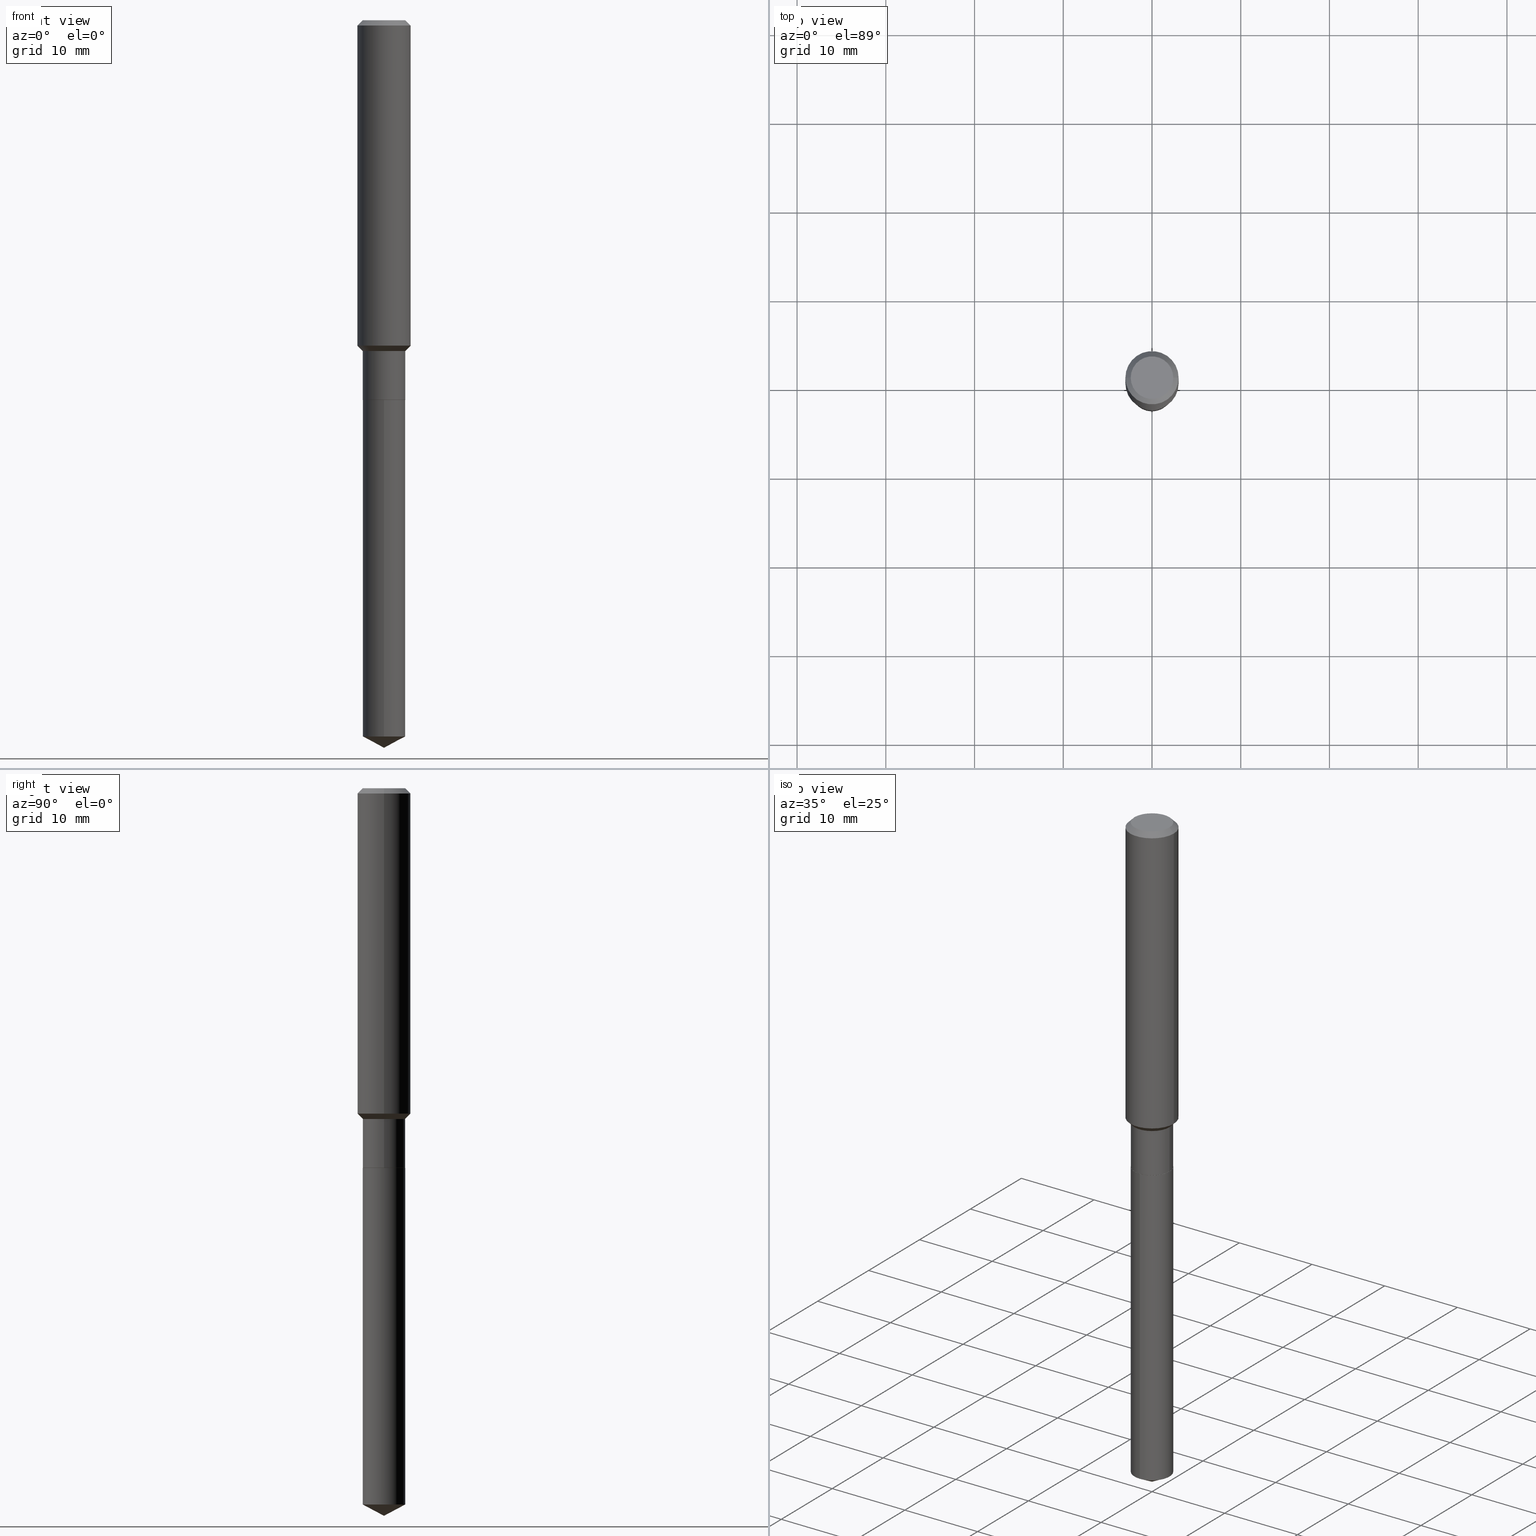
[diagram: canonical four-view strip — front | top / right | iso, engineering-drawing reading convention]
A machine part, canonical four-view strip (front | top / right | iso — engineering-drawing reading convention). The complete STEP part file that produces these views, byte-faithful:
ISO-10303-21;
HEADER;
FILE_DESCRIPTION (( 'STEP AP203' ),
    '1' );
FILE_NAME ('65178.STEP',
    '2024-04-24T21:00:00',
    ( '' ),
    ( '' ),
    'SwSTEP 2.0',
    'SolidWorks 2023',
    '' );
FILE_SCHEMA (( 'CONFIG_CONTROL_DESIGN' ));
ENDSEC;

DATA;
#1 = ORIENTED_EDGE ( 'NONE', *, *, #38, .F. ) ;
#2 = ORGANIZATION ( 'UNSPECIFIED', 'UNSPECIFIED', '' ) ;
#3 = MECHANICAL_CONTEXT ( 'NONE', #61, 'mechanical' ) ;
#4 = FACE_OUTER_BOUND ( 'NONE', #197, .T. ) ;
#5 = EDGE_CURVE ( 'NONE', #441, #319, #317, .T. ) ;
#6 = FACE_OUTER_BOUND ( 'NONE', #372, .T. ) ;
#7 = DIRECTION ( 'NONE',  ( 1.000000000000000000, -6.982962677686266711E-15, 4.876176775795936353E-29 ) ) ;
#8 = CC_DESIGN_PERSON_AND_ORGANIZATION_ASSIGNMENT ( #288, #208, ( #414 ) ) ;
#9 = ORIENTED_EDGE ( 'NONE', *, *, #201, .F. ) ;
#10 = ORIENTED_EDGE ( 'NONE', *, *, #124, .F. ) ;
#11 = AXIS2_PLACEMENT_3D ( 'NONE', #34, #445, #262 ) ;
#12 = APPROVAL_DATE_TIME ( #345, #174 ) ;
#13 = ADVANCED_FACE ( 'NONE', ( #464 ), #140, .T. ) ;
#14 = ORIENTED_EDGE ( 'NONE', *, *, #488, .T. ) ;
#15 = PERSON_AND_ORGANIZATION_ROLE ( 'creator' ) ;
#16 = ORIENTED_EDGE ( 'NONE', *, *, #255, .F. ) ;
#17 = UNCERTAINTY_MEASURE_WITH_UNIT (LENGTH_MEASURE( 1.000000000000000082E-05 ), #82, 'distance_accuracy_value', 'NONE');
#18 = VECTOR ( 'NONE', #355, 39.37007874015748143 ) ;
#19 = CIRCLE ( 'NONE', #296, 0.09449999999999998679 ) ;
#20 = FACE_OUTER_BOUND ( 'NONE', #157, .T. ) ;
#21 = FACE_OUTER_BOUND ( 'NONE', #471, .T. ) ;
#22 = SHAPE_DEFINITION_REPRESENTATION ( #120, #108 ) ;
#23 = CARTESIAN_POINT ( 'NONE',  ( -0.09447999999999998066, 7.009847083995354710E-16, -1.928573779297727792E-17 ) ) ;
#24 = ADVANCED_FACE ( 'NONE', ( #4 ), #237, .T. ) ;
#25 = CARTESIAN_POINT ( 'NONE',  ( 4.119392204018863440E-29, -5.881400315281279815E-15, -1.684500000000000330 ) ) ;
#26 = CARTESIAN_POINT ( 'NONE',  ( 0.1181000000000000799, -8.246878922347486570E-16, 5.758764772215004644E-30 ) ) ;
#27 = CIRCLE ( 'NONE', #246, 0.09449999999999998679 ) ;
#28 = CARTESIAN_POINT ( 'NONE',  ( 7.771783973672636712E-29, -1.109618111312725859E-14, -3.178053458707990497 ) ) ;
#29 = AXIS2_PLACEMENT_3D ( 'NONE', #289, #245, #394 ) ;
#30 = ADVANCED_FACE ( 'NONE', ( #21 ), #243, .T. ) ;
#31 = DIRECTION ( 'NONE',  ( -2.445468806185136597E-29, 3.491481338843145583E-15, 1.000000000000000000 ) ) ;
#32 = DIRECTION ( 'NONE',  ( -2.445437578913088603E-29, 3.491526058074064413E-15, 1.000000000000000000 ) ) ;
#33 = DIRECTION ( 'NONE',  ( -2.445468806185136597E-29, 3.491481338843145583E-15, 1.000000000000000000 ) ) ;
#34 = CARTESIAN_POINT ( 'NONE',  ( 4.120614938421955681E-29, -5.883146055950701318E-15, -1.685000000000000275 ) ) ;
#35 = LOCAL_TIME ( 17, 0, 0.000000000000000000, #461 ) ;
#36 = EDGE_LOOP ( 'NONE', ( #9, #342, #344, #387 ) ) ;
#37 = DIRECTION ( 'NONE',  ( 1.000000000000000000, -6.982962677686261977E-15, 0.000000000000000000 ) ) ;
#38 = EDGE_CURVE ( 'NONE', #441, #162, #421, .T. ) ;
#39 = FACE_OUTER_BOUND ( 'NONE', #51, .T. ) ;
#40 = CARTESIAN_POINT ( 'NONE',  ( -0.09399999999999998634, -5.215235884336206550E-15, -1.685000000000000275 ) ) ;
#41 = VECTOR ( 'NONE', #265, 39.37007874015748143 ) ;
#42 = DIRECTION ( 'NONE',  ( -2.445468806185136597E-29, 3.491481338843145583E-15, 1.000000000000000000 ) ) ;
#43 = EDGE_CURVE ( 'NONE', #314, #123, #134, .T. ) ;
#44 = ORIENTED_EDGE ( 'NONE', *, *, #410, .T. ) ;
#45 = VERTEX_POINT ( 'NONE', #99 ) ;
#46 = APPLICATION_PROTOCOL_DEFINITION ( 'international standard', 'config_control_design', 1994, #395 ) ;
#47 = DIRECTION ( 'NONE',  ( -1.000000000000000000, 6.982962677686265922E-15, -4.876176775795935793E-29 ) ) ;
#48 = ORIENTED_EDGE ( 'NONE', *, *, #293, .F. ) ;
#49 = DATE_AND_TIME ( #275, #369 ) ;
#50 = PERSON ( 'UNSPECIFIED', 'UNSPECIFIED', 'UNSPECIFIED', ('UNSPECIFIED'), ('UNSPECIFIED'), ('UNSPECIFIED') ) ;
#51 = EDGE_LOOP ( 'NONE', ( #222, #422, #233, #114 ) ) ;
#52 = CC_DESIGN_APPROVAL ( #203, ( #414 ) ) ;
#53 = PERSON_AND_ORGANIZATION_ROLE ( 'design_owner' ) ;
#54 = DIRECTION ( 'NONE',  ( 1.000000000000000000, -6.982962677686270655E-15, 0.000000000000000000 ) ) ;
#55 = ORIENTED_EDGE ( 'NONE', *, *, #385, .T. ) ;
#56 = DATE_AND_TIME ( #352, #261 ) ;
#57 = CONICAL_SURFACE ( 'NONE', #469, 0.09399999999999998634, 0.7853981633975507526 ) ;
#58 = CIRCLE ( 'NONE', #490, 0.09449999999999998679 ) ;
#59 = CALENDAR_DATE ( 2024, 24, 4 ) ;
#60 = DIRECTION ( 'NONE',  ( -2.445468806185136597E-29, 3.491481338843145583E-15, 1.000000000000000000 ) ) ;
#61 = APPLICATION_CONTEXT ( 'configuration controlled 3d designs of mechanical parts and assemblies' ) ;
#62 = DIRECTION ( 'NONE',  ( 1.000000000000000000, -6.982962677686269077E-15, 0.000000000000000000 ) ) ;
#63 = EDGE_CURVE ( 'NONE', #81, #406, #270, .T. ) ;
#64 = DIRECTION ( 'NONE',  ( 1.000000000000000000, -6.982962677686266711E-15, 0.000000000000000000 ) ) ;
#65 = VECTOR ( 'NONE', #257, 39.37007874015748143 ) ;
#66 = CARTESIAN_POINT ( 'NONE',  ( -0.1181000000000001632, -4.202548082356822902E-15, -1.443999999999999950 ) ) ;
#67 = DIRECTION ( 'NONE',  ( 1.000000000000000000, -6.982962677686267499E-15, 4.875432709231658792E-29 ) ) ;
#68 = CARTESIAN_POINT ( 'NONE',  ( 4.120614938421955681E-29, -5.883146055950701318E-15, -1.685000000000000275 ) ) ;
#69 = LINE ( 'NONE', #259, #160 ) ;
#70 = CARTESIAN_POINT ( 'NONE',  ( 4.120614938421955681E-29, -5.883146055950701318E-15, -1.685000000000000275 ) ) ;
#71 = APPROVAL ( #195, 'UNSPECIFIED' ) ;
#72 = AXIS2_PLACEMENT_3D ( 'NONE', #429, #382, #7 ) ;
#73 = CARTESIAN_POINT ( 'NONE',  ( -0.09449999999999998679, -4.831286278790446219E-15, -1.684500000000000330 ) ) ;
#74 = APPROVAL_PERSON_ORGANIZATION ( #318, #174, #378 ) ;
#75 = LINE ( 'NONE', #448, #65 ) ;
#76 = CARTESIAN_POINT ( 'NONE',  ( 0.09399999999999998634, -6.539544547653209537E-15, -1.685000000000000275 ) ) ;
#77 =( NAMED_UNIT ( * ) SI_UNIT ( $, .STERADIAN. ) SOLID_ANGLE_UNIT ( ) );
#78 = VERTEX_POINT ( 'NONE', #73 ) ;
#79 = CARTESIAN_POINT ( 'NONE',  ( 2.358133508849003952E-46, -3.366789680499277518E-32, -9.642868896486260050E-18 ) ) ;
#80 = ORIENTED_EDGE ( 'NONE', *, *, #365, .T. ) ;
#81 = VERTEX_POINT ( 'NONE', #485 ) ;
#82 =( CONVERSION_BASED_UNIT ( 'INCH', #151 ) LENGTH_UNIT ( ) NAMED_UNIT ( #361 ) );
#83 = PERSON_AND_ORGANIZATION ( #50, #2 ) ;
#84 = CARTESIAN_POINT ( 'NONE',  ( 7.771783973672636712E-29, -1.109618111312725859E-14, -3.178053458707990497 ) ) ;
#85 = ADVANCED_FACE ( 'NONE', ( #217 ), #370, .T. ) ;
#86 = AXIS2_PLACEMENT_3D ( 'NONE', #153, #453, #286 ) ;
#87 = AXIS2_PLACEMENT_3D ( 'NONE', #400, #60, #252 ) ;
#88 = DIRECTION ( 'NONE',  ( 1.000000000000000000, -6.982962677686267499E-15, 4.875432709231658792E-29 ) ) ;
#89 = PLANE ( 'NONE',  #107 ) ;
#90 = EDGE_LOOP ( 'NONE', ( #322, #368, #16, #231 ) ) ;
#91 = EDGE_CURVE ( 'NONE', #452, #264, #291, .T. ) ;
#92 = PERSON_AND_ORGANIZATION_ROLE ( 'design_supplier' ) ;
#93 = DIRECTION ( 'NONE',  ( -6.982962677686266711E-15, -1.000000000000000000, 3.541896320645564813E-15 ) ) ;
#94 = DATE_AND_TIME ( #59, #200 ) ;
#95 = CC_DESIGN_APPROVAL ( #71, ( #334 ) ) ;
#96 = DIRECTION ( 'NONE',  ( 6.982962677686265922E-15, 1.000000000000000000, -3.491526058074064807E-15 ) ) ;
#97 = CARTESIAN_POINT ( 'NONE',  ( 0.09449999999999995903, -5.783987985927553605E-15, -1.467600000000000238 ) ) ;
#98 = ADVANCED_FACE ( 'NONE', ( #439 ), #248, .T. ) ;
#99 = CARTESIAN_POINT ( 'NONE',  ( -0.1180999999999999966, -1.722932950323809293E-15, -0.02362000000000014088 ) ) ;
#100 = DIRECTION ( 'NONE',  ( -2.445468806185136597E-29, 3.491481338843145583E-15, 1.000000000000000000 ) ) ;
#101 = ORIENTED_EDGE ( 'NONE', *, *, #353, .T. ) ;
#102 = CARTESIAN_POINT ( 'NONE',  ( 0.000000000000000000, 0.000000000000000000, 0.000000000000000000 ) ) ;
#103 = CARTESIAN_POINT ( 'NONE',  ( 5.776197320209327532E-31, -8.246878922347559293E-17, -0.02362000000000014088 ) ) ;
#104 = EDGE_CURVE ( 'NONE', #314, #234, #204, .T. ) ;
#105 = CARTESIAN_POINT ( 'NONE',  ( -0.09449999999999995903, -4.831286278790446219E-15, -1.467600000000000238 ) ) ;
#106 = CARTESIAN_POINT ( 'NONE',  ( 0.09449999999999995903, -5.783987985927553605E-15, -1.467600000000000238 ) ) ;
#107 = AXIS2_PLACEMENT_3D ( 'NONE', #130, #323, #96 ) ;
#108 = ADVANCED_BREP_SHAPE_REPRESENTATION ( '65178', ( #282, #278, #432 ), #149 ) ;
#109 = CC_DESIGN_SECURITY_CLASSIFICATION ( #414, ( #290 ) ) ;
#110 = VERTEX_POINT ( 'NONE', #254 ) ;
#111 = CARTESIAN_POINT ( 'NONE',  ( -0.09449999999999997291, 6.714628852932944832E-16, -4.648393660290884930E-30 ) ) ;
#112 = ORIENTED_EDGE ( 'NONE', *, *, #161, .T. ) ;
#113 = DIRECTION ( 'NONE',  ( 1.000000000000000000, -6.982962677686265922E-15, 4.876176775795935793E-29 ) ) ;
#114 = ORIENTED_EDGE ( 'NONE', *, *, #184, .T. ) ;
#115 = DIRECTION ( 'NONE',  ( 1.000000000000000000, -6.982962677686266711E-15, 4.876176775795936353E-29 ) ) ;
#116 = CARTESIAN_POINT ( 'NONE',  ( 5.776197320209327532E-31, -8.246878922347559293E-17, -0.02362000000000014088 ) ) ;
#117 = VECTOR ( 'NONE', #148, 39.37007874015748143 ) ;
#118 = ORIENTED_EDGE ( 'NONE', *, *, #143, .F. ) ;
#119 = PERSON_AND_ORGANIZATION ( #50, #2 ) ;
#120 = PRODUCT_DEFINITION_SHAPE ( 'NONE', 'NONE',  #334 ) ;
#121 = CARTESIAN_POINT ( 'NONE',  ( -6.598899730413107968E-16, -0.09450000000000588485, -1.684999999999999831 ) ) ;
#122 = EDGE_LOOP ( 'NONE', ( #152, #101, #279 ) ) ;
#123 = VERTEX_POINT ( 'NONE', #66 ) ;
#124 = EDGE_CURVE ( 'NONE', #406, #81, #27, .T. ) ;
#125 = DATE_TIME_ROLE ( 'creation_date' ) ;
#126 = ORIENTED_EDGE ( 'NONE', *, *, #433, .F. ) ;
#127 = ORIENTED_EDGE ( 'NONE', *, *, #416, .F. ) ;
#128 = AXIS2_PLACEMENT_3D ( 'NONE', #417, #297, #188 ) ;
#129 = VERTEX_POINT ( 'NONE', #199 ) ;
#130 = CARTESIAN_POINT ( 'NONE',  ( 4.120614938421955681E-29, -5.883146055950701318E-15, -1.685000000000000275 ) ) ;
#131 = ADVANCED_FACE ( 'NONE', ( #348 ), #320, .T. ) ;
#132 = APPROVAL_DATE_TIME ( #56, #203 ) ;
#133 = CC_DESIGN_APPROVAL ( #174, ( #290 ) ) ;
#134 = LINE ( 'NONE', #326, #474 ) ;
#135 = EDGE_LOOP ( 'NONE', ( #80, #112 ) ) ;
#136 = CARTESIAN_POINT ( 'NONE',  ( 0.1180999999999999966, -9.071566814582237199E-16, -0.02362000000000014088 ) ) ;
#137 = CARTESIAN_POINT ( 'NONE',  ( 3.588970019957307278E-29, -5.124098012886201590E-15, -1.467600000000000238 ) ) ;
#138 = DIRECTION ( 'NONE',  ( -2.445468806185136597E-29, 3.491481338843145583E-15, 1.000000000000000000 ) ) ;
#139 = ORIENTED_EDGE ( 'NONE', *, *, #374, .F. ) ;
#140 = CONICAL_SURFACE ( 'NONE', #302, 0.09449999999999995903, 0.7853981633974472798 ) ;
#141 = AXIS2_PLACEMENT_3D ( 'NONE', #480, #138, #446 ) ;
#142 = FACE_OUTER_BOUND ( 'NONE', #36, .T. ) ;
#143 = EDGE_CURVE ( 'NONE', #308, #110, #58, .T. ) ;
#144 = CARTESIAN_POINT ( 'NONE',  ( 0.09447999999999998066, -7.704367267948738690E-16, -1.928573779296752193E-17 ) ) ;
#145 = DIRECTION ( 'NONE',  ( -2.445468806185136597E-29, 3.491481338843145583E-15, 1.000000000000000000 ) ) ;
#146 = FACE_OUTER_BOUND ( 'NONE', #90, .T. ) ;
#147 = ADVANCED_FACE ( 'NONE', ( #155 ), #266, .F. ) ;
#148 = DIRECTION ( 'NONE',  ( -2.445468806185136877E-29, 3.491481338843145188E-15, 1.000000000000000000 ) ) ;
#149 =( GEOMETRIC_REPRESENTATION_CONTEXT ( 3 ) GLOBAL_UNCERTAINTY_ASSIGNED_CONTEXT ( ( #17 ) ) GLOBAL_UNIT_ASSIGNED_CONTEXT ( ( #82, #305, #77 ) ) REPRESENTATION_CONTEXT ( 'NONE', 'WORKASPACE' ) );
#150 = ORIENTED_EDGE ( 'NONE', *, *, #402, .T. ) ;
#151 = LENGTH_MEASURE_WITH_UNIT ( LENGTH_MEASURE( 0.02539999999999999897 ), #430 );
#152 = ORIENTED_EDGE ( 'NONE', *, *, #488, .F. ) ;
#153 = CARTESIAN_POINT ( 'NONE',  ( -8.838241128198983547E-28, 1.261900376083111697E-13, 36.14177874015747705 ) ) ;
#154 = DIRECTION ( 'NONE',  ( 1.000000000000000000, -6.982962677686266711E-15, 0.000000000000000000 ) ) ;
#155 = FACE_OUTER_BOUND ( 'NONE', #135, .T. ) ;
#156 = ORIENTED_EDGE ( 'NONE', *, *, #178, .F. ) ;
#157 = EDGE_LOOP ( 'NONE', ( #215, #44, #230, #127 ) ) ;
#158 = DIRECTION ( 'NONE',  ( -2.438088387897960049E-29, 3.491481338843145188E-15, 1.000000000000000000 ) ) ;
#159 = AXIS2_PLACEMENT_3D ( 'NONE', #137, #401, #62 ) ;
#160 = VECTOR ( 'NONE', #483, 39.37007874015748143 ) ;
#161 = EDGE_CURVE ( 'NONE', #424, #194, #443, .T. ) ;
#162 = VERTEX_POINT ( 'NONE', #458 ) ;
#163 = CARTESIAN_POINT ( 'NONE',  ( 7.894712294706608394E-29, -1.127154286947230610E-14, -3.228299999999999947 ) ) ;
#164 = DIRECTION ( 'NONE',  ( -6.982962677686265922E-15, -1.000000000000000000, 2.890844437739961472E-15 ) ) ;
#165 = CARTESIAN_POINT ( 'NONE',  ( 0.000000000000000000, 0.000000000000000000, 0.000000000000000000 ) ) ;
#166 = ORIENTED_EDGE ( 'NONE', *, *, #293, .T. ) ;
#167 = ORIENTED_EDGE ( 'NONE', *, *, #444, .T. ) ;
#168 = COORDINATED_UNIVERSAL_TIME_OFFSET ( 5, 0, .BEHIND. ) ;
#169 = DIRECTION ( 'NONE',  ( 0.7071067811866199593, -2.468850131083015945E-15, 0.7071067811864750752 ) ) ;
#170 = APPROVAL_STATUS ( 'not_yet_approved' ) ;
#171 = EDGE_CURVE ( 'NONE', #452, #123, #313, .T. ) ;
#172 = AXIS2_PLACEMENT_3D ( 'NONE', #403, #145, #408 ) ;
#173 = AXIS2_PLACEMENT_3D ( 'NONE', #364, #336, #67 ) ;
#174 = APPROVAL ( #465, 'UNSPECIFIED' ) ;
#175 = CARTESIAN_POINT ( 'NONE',  ( -8.838241128198983547E-28, 1.261900376083111697E-13, 36.14177874015747705 ) ) ;
#176 = DIRECTION ( 'NONE',  ( -2.445468806185136597E-29, 3.491481338843145583E-15, 1.000000000000000000 ) ) ;
#177 = CARTESIAN_POINT ( 'NONE',  ( 4.120614938421955681E-29, -5.883146055950701318E-15, -1.685000000000000275 ) ) ;
#178 = EDGE_CURVE ( 'NONE', #308, #406, #242, .T. ) ;
#179 = AXIS2_PLACEMENT_3D ( 'NONE', #175, #206, #93 ) ;
#180 = VECTOR ( 'NONE', #411, 39.37007874015748143 ) ;
#181 = FACE_OUTER_BOUND ( 'NONE', #380, .T. ) ;
#182 = DIRECTION ( 'NONE',  ( 1.000000000000000000, -6.982962677686266711E-15, 0.000000000000000000 ) ) ;
#183 = DIRECTION ( 'NONE',  ( -2.445468806185136877E-29, 3.491481338843145188E-15, 1.000000000000000000 ) ) ;
#184 = EDGE_CURVE ( 'NONE', #45, #264, #284, .T. ) ;
#185 = AXIS2_PLACEMENT_3D ( 'NONE', #102, #276, #115 ) ;
#186 = CARTESIAN_POINT ( 'NONE',  ( 4.120614938421955681E-29, -5.883146055950701318E-15, -1.685000000000000275 ) ) ;
#187 = CARTESIAN_POINT ( 'NONE',  ( 0.1181000000000001632, -5.866386945524251729E-15, -1.443999999999999950 ) ) ;
#188 = DIRECTION ( 'NONE',  ( -6.982962677686265922E-15, -1.000000000000000000, 2.890844437739961472E-15 ) ) ;
#189 = DESIGN_CONTEXT ( 'detailed design', #395, 'design' ) ;
#190 = AXIS2_PLACEMENT_3D ( 'NONE', #304, #33, #442 ) ;
#191 = CARTESIAN_POINT ( 'NONE',  ( 0.09399999999999998634, -6.539544547653209537E-15, -1.685000000000000275 ) ) ;
#192 = COORDINATED_UNIVERSAL_TIME_OFFSET ( 5, 0, .BEHIND. ) ;
#193 = DIRECTION ( 'NONE',  ( -2.445437578913088884E-29, 3.491526058074064807E-15, 1.000000000000000000 ) ) ;
#194 = VERTEX_POINT ( 'NONE', #23 ) ;
#195 = APPROVAL_STATUS ( 'not_yet_approved' ) ;
#196 = CARTESIAN_POINT ( 'NONE',  ( 3.531256956131336914E-29, -5.041699053289501888E-15, -1.443999999999999950 ) ) ;
#197 = EDGE_LOOP ( 'NONE', ( #274, #14, #118 ) ) ;
#198 = CALENDAR_DATE ( 2024, 24, 4 ) ;
#199 = CARTESIAN_POINT ( 'NONE',  ( 7.894606136005123343E-29, -1.127169357328050184E-14, -3.228299999999999947 ) ) ;
#200 = LOCAL_TIME ( 17, 0, 0.000000000000000000, #468 ) ;
#201 = EDGE_CURVE ( 'NONE', #110, #81, #478, .T. ) ;
#202 = PRODUCT ( '65178', '65178', '', ( #3 ) ) ;
#203 = APPROVAL ( #170, 'UNSPECIFIED' ) ;
#204 = CIRCLE ( 'NONE', #354, 0.09449999999999995903 ) ;
#205 = CIRCLE ( 'NONE', #225, 0.09449999999999998679 ) ;
#206 = DIRECTION ( 'NONE',  ( -2.445437578913088603E-29, 3.491526058074064413E-15, 1.000000000000000000 ) ) ;
#207 = ADVANCED_FACE ( 'NONE', ( #438 ), #388, .T. ) ;
#208 = PERSON_AND_ORGANIZATION_ROLE ( 'classification_officer' ) ;
#209 = CARTESIAN_POINT ( 'NONE',  ( 3.588970019957307278E-29, -5.124098012886201590E-15, -1.467600000000000238 ) ) ;
#210 = CARTESIAN_POINT ( 'NONE',  ( 5.776197320209327532E-31, -8.246878922347559293E-17, -0.02362000000000014088 ) ) ;
#211 = DIRECTION ( 'NONE',  ( 1.000000000000000000, -6.982962677686266711E-15, 4.876176775795935793E-29 ) ) ;
#212 = ADVANCED_FACE ( 'NONE', ( #181 ), #89, .F. ) ;
#213 = LINE ( 'NONE', #489, #117 ) ;
#214 = DIRECTION ( 'NONE',  ( -6.982962677686265922E-15, -1.000000000000000000, 2.890844437739961472E-15 ) ) ;
#215 = ORIENTED_EDGE ( 'NONE', *, *, #161, .F. ) ;
#216 = CYLINDRICAL_SURFACE ( 'NONE', #377, 0.09449999999999998679 ) ;
#217 = FACE_OUTER_BOUND ( 'NONE', #315, .T. ) ;
#218 = CONICAL_SURFACE ( 'NONE', #271, 0.1180999999999999966, 0.7853981633974460586 ) ;
#219 = DIRECTION ( 'NONE',  ( -0.7071067811865459074, 2.468850131082240100E-15, -0.7071067811865491270 ) ) ;
#220 = CARTESIAN_POINT ( 'NONE',  ( 0.09449999999999998679, -6.541290288322631830E-15, -1.684500000000000330 ) ) ;
#221 = CARTESIAN_POINT ( 'NONE',  ( -6.598899730413107968E-16, -0.09450000000000588485, -1.684999999999999831 ) ) ;
#222 = ORIENTED_EDGE ( 'NONE', *, *, #410, .F. ) ;
#223 = APPROVAL_DATE_TIME ( #456, #71 ) ;
#224 = AXIS2_PLACEMENT_3D ( 'NONE', #116, #357, #360 ) ;
#225 = AXIS2_PLACEMENT_3D ( 'NONE', #28, #292, #253 ) ;
#226 = ORIENTED_EDGE ( 'NONE', *, *, #374, .T. ) ;
#227 = ORIENTED_EDGE ( 'NONE', *, *, #171, .F. ) ;
#228 = APPLICATION_PROTOCOL_DEFINITION ( 'international standard', 'config_control_design', 1994, #61 ) ;
#229 = CARTESIAN_POINT ( 'NONE',  ( 4.716267017698007905E-46, -6.733579360998555036E-32, -1.928573779297252010E-17 ) ) ;
#230 = ORIENTED_EDGE ( 'NONE', *, *, #277, .T. ) ;
#231 = ORIENTED_EDGE ( 'NONE', *, *, #5, .F. ) ;
#232 = DIRECTION ( 'NONE',  ( -6.982962677686265922E-15, -1.000000000000000000, 5.781688875479922944E-15 ) ) ;
#233 = ORIENTED_EDGE ( 'NONE', *, *, #416, .T. ) ;
#234 = VERTEX_POINT ( 'NONE', #97 ) ;
#235 = CARTESIAN_POINT ( 'NONE',  ( 4.119392204018863440E-29, -5.881400315281279815E-15, -1.684500000000000330 ) ) ;
#236 = DIRECTION ( 'NONE',  ( -2.445437578913088603E-29, 3.491526058074064413E-15, 1.000000000000000000 ) ) ;
#237 = CONICAL_SURFACE ( 'NONE', #86, 74.04434902938345431, 1.082104136236486047 ) ;
#238 = ADVANCED_FACE ( 'NONE', ( #20 ), #404, .T. ) ;
#239 = VECTOR ( 'NONE', #328, 39.37007874015748143 ) ;
#240 = ORIENTED_EDGE ( 'NONE', *, *, #444, .F. ) ;
#241 = DIRECTION ( 'NONE',  ( 0.000000000000000000, 0.000000000000000000, 1.000000000000000000 ) ) ;
#242 = LINE ( 'NONE', #121, #346 ) ;
#243 = CYLINDRICAL_SURFACE ( 'NONE', #484, 0.09449999999999997291 ) ;
#244 = PRODUCT_RELATED_PRODUCT_CATEGORY ( 'detail', '', ( #202 ) ) ;
#245 = DIRECTION ( 'NONE',  ( 2.445468806185136597E-29, -3.491481338843145583E-15, -1.000000000000000000 ) ) ;
#246 = AXIS2_PLACEMENT_3D ( 'NONE', #362, #32, #164 ) ;
#247 = APPROVAL_PERSON_ORGANIZATION ( #451, #71, #316 ) ;
#248 = CONICAL_SURFACE ( 'NONE', #159, 0.09449999999999995903, 0.7853981633974472798 ) ;
#249 = ADVANCED_FACE ( 'NONE', ( #250 ), #398, .T. ) ;
#250 = FACE_OUTER_BOUND ( 'NONE', #460, .T. ) ;
#251 = SECURITY_CLASSIFICATION_LEVEL ( 'unclassified' ) ;
#252 = DIRECTION ( 'NONE',  ( 1.000000000000000000, -6.982962677686266711E-15, 4.876176775795935793E-29 ) ) ;
#253 = DIRECTION ( 'NONE',  ( -6.982962677686265922E-15, -1.000000000000000000, 5.781688875479922944E-15 ) ) ;
#254 = CARTESIAN_POINT ( 'NONE',  ( 6.714628852933723832E-16, 0.09449999999998892619, -3.178053458707990941 ) ) ;
#255 = EDGE_CURVE ( 'NONE', #319, #78, #19, .T. ) ;
#256 = CIRCLE ( 'NONE', #303, 0.09449999999999998679 ) ;
#257 = DIRECTION ( 'NONE',  ( -6.165590087286832085E-15, -0.8829475928589261002, 0.4694715627858923601 ) ) ;
#258 = CARTESIAN_POINT ( 'NONE',  ( -0.1181000000000000799, 8.391509709326788873E-16, -5.809262341591047988E-30 ) ) ;
#259 = CARTESIAN_POINT ( 'NONE',  ( 0.1180999999999999966, -8.926936027602933910E-16, -0.02362000000000014088 ) ) ;
#260 = DIRECTION ( 'NONE',  ( -0.7071067811865467956, 7.493145998870351005E-15, 0.7071067811865482389 ) ) ;
#261 = LOCAL_TIME ( 17, 0, 0.000000000000000000, #397 ) ;
#262 = DIRECTION ( 'NONE',  ( 1.000000000000000000, -6.982962677686261977E-15, 0.000000000000000000 ) ) ;
#263 = LINE ( 'NONE', #258, #180 ) ;
#264 = VERTEX_POINT ( 'NONE', #136 ) ;
#265 = DIRECTION ( 'NONE',  ( 6.273719981627762921E-15, 0.8829475928589293199, 0.4694715627858860874 ) ) ;
#266 = PLANE ( 'NONE',  #367 ) ;
#267 = ORIENTED_EDGE ( 'NONE', *, *, #104, .T. ) ;
#268 = EDGE_CURVE ( 'NONE', #110, #308, #205, .T. ) ;
#269 = ORIENTED_EDGE ( 'NONE', *, *, #143, .T. ) ;
#270 = CIRCLE ( 'NONE', #455, 0.09449999999999998679 ) ;
#271 = AXIS2_PLACEMENT_3D ( 'NONE', #103, #413, #363 ) ;
#272 = DIRECTION ( 'NONE',  ( -2.445468806185136597E-29, 3.491481338843145583E-15, 1.000000000000000000 ) ) ;
#273 = ORIENTED_EDGE ( 'NONE', *, *, #402, .F. ) ;
#274 = ORIENTED_EDGE ( 'NONE', *, *, #353, .F. ) ;
#275 = CALENDAR_DATE ( 2024, 24, 4 ) ;
#276 = DIRECTION ( 'NONE',  ( -2.445468806185136597E-29, 3.491481338843145583E-15, 1.000000000000000000 ) ) ;
#277 = EDGE_CURVE ( 'NONE', #264, #45, #423, .T. ) ;
#278 = MANIFOLD_SOLID_BREP ( 'Body-Move/Copy2[2]', #332 ) ;
#279 = ORIENTED_EDGE ( 'NONE', *, *, #268, .F. ) ;
#280 = EDGE_LOOP ( 'NONE', ( #269, #300, #10, #156 ) ) ;
#281 = DIRECTION ( 'NONE',  ( -2.445468806185136597E-29, 3.491481338843145583E-15, 1.000000000000000000 ) ) ;
#282 = MANIFOLD_SOLID_BREP ( 'Body-Move/Copy2[1]', #393 ) ;
#283 = DIRECTION ( 'NONE',  ( 2.438088387897960049E-29, -3.491481338843145188E-15, -1.000000000000000000 ) ) ;
#284 = CIRCLE ( 'NONE', #224, 0.1180999999999999966 ) ;
#285 = ORIENTED_EDGE ( 'NONE', *, *, #43, .T. ) ;
#286 = DIRECTION ( 'NONE',  ( -6.982962677686266711E-15, -1.000000000000000000, 3.541896320645564813E-15 ) ) ;
#287 = CC_DESIGN_PERSON_AND_ORGANIZATION_ASSIGNMENT ( #381, #53, ( #202 ) ) ;
#288 = PERSON_AND_ORGANIZATION ( #50, #2 ) ;
#289 = CARTESIAN_POINT ( 'NONE',  ( 5.776197320209327532E-31, -8.246878922347559293E-17, -0.02362000000000014088 ) ) ;
#290 = PRODUCT_DEFINITION_FORMATION_WITH_SPECIFIED_SOURCE ( 'ANY', '', #202, .NOT_KNOWN. ) ;
#291 = LINE ( 'NONE', #26, #358 ) ;
#292 = DIRECTION ( 'NONE',  ( -2.445437578913088603E-29, 3.491526058074064413E-15, 1.000000000000000000 ) ) ;
#293 = EDGE_CURVE ( 'NONE', #162, #441, #324, .T. ) ;
#294 = DIRECTION ( 'NONE',  ( 0.7071067811865467956, -2.468850131082249172E-15, 0.7071067811865482389 ) ) ;
#295 = ORIENTED_EDGE ( 'NONE', *, *, #124, .T. ) ;
#296 = AXIS2_PLACEMENT_3D ( 'NONE', #25, #176, #64 ) ;
#297 = DIRECTION ( 'NONE',  ( -2.445437578913088603E-29, 3.491526058074064413E-15, 1.000000000000000000 ) ) ;
#298 = LINE ( 'NONE', #40, #239 ) ;
#299 = DIRECTION ( 'NONE',  ( -2.445437578913088603E-29, 3.491526058074064413E-15, 1.000000000000000000 ) ) ;
#300 = ORIENTED_EDGE ( 'NONE', *, *, #201, .T. ) ;
#301 = FACE_OUTER_BOUND ( 'NONE', #280, .T. ) ;
#302 = AXIS2_PLACEMENT_3D ( 'NONE', #467, #42, #341 ) ;
#303 = AXIS2_PLACEMENT_3D ( 'NONE', #235, #281, #154 ) ;
#304 = CARTESIAN_POINT ( 'NONE',  ( 3.531256956131336914E-29, -5.041699053289501888E-15, -1.443999999999999950 ) ) ;
#305 =( NAMED_UNIT ( * ) PLANE_ANGLE_UNIT ( ) SI_UNIT ( $, .RADIAN. ) );
#306 = ADVANCED_FACE ( 'NONE', ( #142 ), #373, .T. ) ;
#307 = EDGE_LOOP ( 'NONE', ( #327, #55, #338, #383 ) ) ;
#308 = VERTEX_POINT ( 'NONE', #407 ) ;
#309 = DIRECTION ( 'NONE',  ( 1.000000000000000000, 0.000000000000000000, 0.000000000000000000 ) ) ;
#310 = ORIENTED_EDGE ( 'NONE', *, *, #91, .F. ) ;
#311 = ORIENTED_EDGE ( 'NONE', *, *, #385, .F. ) ;
#312 = AXIS2_PLACEMENT_3D ( 'NONE', #229, #389, #88 ) ;
#313 = CIRCLE ( 'NONE', #457, 0.1181000000000001632 ) ;
#314 = VERTEX_POINT ( 'NONE', #105 ) ;
#315 = EDGE_LOOP ( 'NONE', ( #126, #166, #409, #427 ) ) ;
#316 = APPROVAL_ROLE ( '' ) ;
#317 = LINE ( 'NONE', #191, #431 ) ;
#318 = PERSON_AND_ORGANIZATION ( #50, #2 ) ;
#319 = VERTEX_POINT ( 'NONE', #220 ) ;
#320 = CYLINDRICAL_SURFACE ( 'NONE', #72, 0.1181000000000000799 ) ;
#321 = CIRCLE ( 'NONE', #190, 0.1181000000000001632 ) ;
#322 = ORIENTED_EDGE ( 'NONE', *, *, #38, .T. ) ;
#323 = DIRECTION ( 'NONE',  ( 2.445437578913087763E-29, -3.491526058074064807E-15, -1.000000000000000000 ) ) ;
#324 = CIRCLE ( 'NONE', #11, 0.09399999999999998634 ) ;
#325 = ADVANCED_FACE ( 'NONE', ( #39 ), #218, .T. ) ;
#326 = CARTESIAN_POINT ( 'NONE',  ( -0.09449999999999995903, -4.452635127592907501E-15, -1.467600000000000238 ) ) ;
#327 = ORIENTED_EDGE ( 'NONE', *, *, #349, .F. ) ;
#328 = DIRECTION ( 'NONE',  ( -0.7071067811866199593, 7.493145998870616062E-15, 0.7071067811864750752 ) ) ;
#329 = DIRECTION ( 'NONE',  ( -6.982962677686265922E-15, -1.000000000000000000, 2.890844437739961472E-15 ) ) ;
#330 = AXIS2_PLACEMENT_3D ( 'NONE', #177, #100, #476 ) ;
#331 = VECTOR ( 'NONE', #294, 39.37007874015748143 ) ;
#332 = CLOSED_SHELL ( 'NONE', ( #447, #238, #466, #13, #249, #30, #98, #131, #325, #147, #481, #85 ) ) ;
#333 = LINE ( 'NONE', #486, #405 ) ;
#334 = PRODUCT_DEFINITION ( 'UNKNOWN', '', #290, #189 ) ;
#335 = LINE ( 'NONE', #106, #331 ) ;
#336 = DIRECTION ( 'NONE',  ( -2.445468806185136597E-29, 3.491481338843145583E-15, 1.000000000000000000 ) ) ;
#337 = ORIENTED_EDGE ( 'NONE', *, *, #277, .F. ) ;
#338 = ORIENTED_EDGE ( 'NONE', *, *, #91, .T. ) ;
#339 = ADVANCED_FACE ( 'NONE', ( #301 ), #216, .T. ) ;
#340 = AXIS2_PLACEMENT_3D ( 'NONE', #210, #31, #182 ) ;
#341 = DIRECTION ( 'NONE',  ( 1.000000000000000000, -6.982962677686269077E-15, 0.000000000000000000 ) ) ;
#342 = ORIENTED_EDGE ( 'NONE', *, *, #268, .T. ) ;
#343 = ORIENTED_EDGE ( 'NONE', *, *, #104, .F. ) ;
#344 = ORIENTED_EDGE ( 'NONE', *, *, #178, .T. ) ;
#345 = DATE_AND_TIME ( #198, #347 ) ;
#346 = VECTOR ( 'NONE', #193, 39.37007874015748143 ) ;
#347 = LOCAL_TIME ( 17, 0, 0.000000000000000000, #192 ) ;
#348 = FACE_OUTER_BOUND ( 'NONE', #307, .T. ) ;
#349 = EDGE_CURVE ( 'NONE', #123, #45, #263, .T. ) ;
#350 = CARTESIAN_POINT ( 'NONE',  ( 0.000000000000000000, 0.000000000000000000, 0.000000000000000000 ) ) ;
#351 = EDGE_LOOP ( 'NONE', ( #167, #285, #227, #420 ) ) ;
#352 = CALENDAR_DATE ( 2024, 24, 4 ) ;
#353 = EDGE_CURVE ( 'NONE', #129, #308, #75, .T. ) ;
#354 = AXIS2_PLACEMENT_3D ( 'NONE', #209, #479, #440 ) ;
#355 = DIRECTION ( 'NONE',  ( -2.445437578913088884E-29, 3.491526058074064807E-15, 1.000000000000000000 ) ) ;
#356 = CIRCLE ( 'NONE', #173, 0.09447999999999998066 ) ;
#357 = DIRECTION ( 'NONE',  ( -2.445468806185136597E-29, 3.491481338843145583E-15, 1.000000000000000000 ) ) ;
#358 = VECTOR ( 'NONE', #366, 39.37007874015748143 ) ;
#359 = AXIS2_PLACEMENT_3D ( 'NONE', #384, #158, #113 ) ;
#360 = DIRECTION ( 'NONE',  ( 1.000000000000000000, -6.982962677686266711E-15, 0.000000000000000000 ) ) ;
#361 = DIMENSIONAL_EXPONENTS ( 1.000000000000000000, 0.000000000000000000, 0.000000000000000000, 0.000000000000000000, 0.000000000000000000, 0.000000000000000000, 0.000000000000000000 ) ;
#362 = CARTESIAN_POINT ( 'NONE',  ( 4.120614938421955681E-29, -5.883146055950701318E-15, -1.685000000000000275 ) ) ;
#363 = DIRECTION ( 'NONE',  ( -1.000000000000000000, 6.982962677686266711E-15, 0.000000000000000000 ) ) ;
#364 = CARTESIAN_POINT ( 'NONE',  ( 4.716267017698007905E-46, -6.733579360998555036E-32, -1.928573779297252010E-17 ) ) ;
#365 = EDGE_CURVE ( 'NONE', #194, #424, #356, .T. ) ;
#366 = DIRECTION ( 'NONE',  ( -2.445468806185136877E-29, 3.491481338843145188E-15, 1.000000000000000000 ) ) ;
#367 = AXIS2_PLACEMENT_3D ( 'NONE', #79, #283, #47 ) ;
#368 = ORIENTED_EDGE ( 'NONE', *, *, #433, .T. ) ;
#369 = LOCAL_TIME ( 17, 0, 0.000000000000000000, #168 ) ;
#370 = CONICAL_SURFACE ( 'NONE', #330, 0.09399999999999998634, 0.7853981633975507526 ) ;
#371 = DIRECTION ( 'NONE',  ( -2.445468806185136597E-29, 3.491481338843145583E-15, 1.000000000000000000 ) ) ;
#372 = EDGE_LOOP ( 'NONE', ( #1, #48 ) ) ;
#373 = CYLINDRICAL_SURFACE ( 'NONE', #128, 0.09449999999999998679 ) ;
#374 = EDGE_CURVE ( 'NONE', #319, #234, #213, .T. ) ;
#375 = DIRECTION ( 'NONE',  ( -2.445437578913088603E-29, 3.491526058074064413E-15, 1.000000000000000000 ) ) ;
#376 = ORIENTED_EDGE ( 'NONE', *, *, #63, .T. ) ;
#377 = AXIS2_PLACEMENT_3D ( 'NONE', #186, #375, #329 ) ;
#378 = APPROVAL_ROLE ( '' ) ;
#379 = EDGE_LOOP ( 'NONE', ( #390, #267, #392, #311 ) ) ;
#380 = EDGE_LOOP ( 'NONE', ( #295, #376 ) ) ;
#381 = PERSON_AND_ORGANIZATION ( #50, #2 ) ;
#382 = DIRECTION ( 'NONE',  ( -2.445468806185136597E-29, 3.491481338843145583E-15, 1.000000000000000000 ) ) ;
#383 = ORIENTED_EDGE ( 'NONE', *, *, #184, .F. ) ;
#384 = CARTESIAN_POINT ( 'NONE',  ( 4.120614938421955681E-29, -5.883146055950701318E-15, -1.685000000000000275 ) ) ;
#385 = EDGE_CURVE ( 'NONE', #123, #452, #321, .T. ) ;
#386 = ORIENTED_EDGE ( 'NONE', *, *, #349, .T. ) ;
#387 = ORIENTED_EDGE ( 'NONE', *, *, #63, .F. ) ;
#388 = CONICAL_SURFACE ( 'NONE', #179, 74.04434902938345431, 1.082104136236486047 ) ;
#389 = DIRECTION ( 'NONE',  ( -2.445468806185136597E-29, 3.491481338843145583E-15, 1.000000000000000000 ) ) ;
#390 = ORIENTED_EDGE ( 'NONE', *, *, #43, .F. ) ;
#391 = DATE_TIME_ROLE ( 'classification_date' ) ;
#392 = ORIENTED_EDGE ( 'NONE', *, *, #454, .T. ) ;
#393 = CLOSED_SHELL ( 'NONE', ( #339, #24, #207, #306, #212 ) ) ;
#394 = DIRECTION ( 'NONE',  ( -1.000000000000000000, 6.982962677686266711E-15, 0.000000000000000000 ) ) ;
#395 = APPLICATION_CONTEXT ( 'configuration controlled 3d designs of mechanical parts and assemblies' ) ;
#396 = CIRCLE ( 'NONE', #141, 0.09449999999999995903 ) ;
#397 = COORDINATED_UNIVERSAL_TIME_OFFSET ( 5, 0, .BEHIND. ) ;
#398 = CYLINDRICAL_SURFACE ( 'NONE', #87, 0.09449999999999997291 ) ;
#399 = PERSON_AND_ORGANIZATION_ROLE ( 'creator' ) ;
#400 = CARTESIAN_POINT ( 'NONE',  ( 0.000000000000000000, 0.000000000000000000, 0.000000000000000000 ) ) ;
#401 = DIRECTION ( 'NONE',  ( -2.445468806185136597E-29, 3.491481338843145583E-15, 1.000000000000000000 ) ) ;
#402 = EDGE_CURVE ( 'NONE', #78, #314, #450, .T. ) ;
#403 = CARTESIAN_POINT ( 'NONE',  ( 4.120614938421955681E-29, -5.883146055950701318E-15, -1.685000000000000275 ) ) ;
#404 = CONICAL_SURFACE ( 'NONE', #29, 0.1180999999999999966, 0.7853981633974460586 ) ;
#405 = VECTOR ( 'NONE', #219, 39.37007874015748143 ) ;
#406 = VERTEX_POINT ( 'NONE', #221 ) ;
#407 = CARTESIAN_POINT ( 'NONE',  ( -6.598899730412745092E-16, -0.09450000000001110290, -3.178053458707990053 ) ) ;
#408 = DIRECTION ( 'NONE',  ( 1.000000000000000000, -6.982962677686261977E-15, 0.000000000000000000 ) ) ;
#409 = ORIENTED_EDGE ( 'NONE', *, *, #5, .T. ) ;
#410 = EDGE_CURVE ( 'NONE', #424, #264, #69, .T. ) ;
#411 = DIRECTION ( 'NONE',  ( -2.445468806185136877E-29, 3.491481338843145188E-15, 1.000000000000000000 ) ) ;
#412 = CC_DESIGN_DATE_AND_TIME_ASSIGNMENT ( #94, #391, ( #414 ) ) ;
#413 = DIRECTION ( 'NONE',  ( 2.445468806185136597E-29, -3.491481338843145583E-15, -1.000000000000000000 ) ) ;
#414 = SECURITY_CLASSIFICATION ( '', '', #251 ) ;
#415 = CYLINDRICAL_SURFACE ( 'NONE', #185, 0.1181000000000000799 ) ;
#416 = EDGE_CURVE ( 'NONE', #194, #45, #333, .T. ) ;
#417 = CARTESIAN_POINT ( 'NONE',  ( 4.120614938421955681E-29, -5.883146055950701318E-15, -1.685000000000000275 ) ) ;
#418 = CC_DESIGN_DATE_AND_TIME_ASSIGNMENT ( #49, #125, ( #334 ) ) ;
#419 = CALENDAR_DATE ( 2024, 24, 4 ) ;
#420 = ORIENTED_EDGE ( 'NONE', *, *, #454, .F. ) ;
#421 = CIRCLE ( 'NONE', #172, 0.09399999999999998634 ) ;
#422 = ORIENTED_EDGE ( 'NONE', *, *, #365, .F. ) ;
#423 = CIRCLE ( 'NONE', #340, 0.1180999999999999966 ) ;
#424 = VERTEX_POINT ( 'NONE', #144 ) ;
#425 = ORIENTED_EDGE ( 'NONE', *, *, #473, .T. ) ;
#426 = PLANE ( 'NONE',  #359 ) ;
#427 = ORIENTED_EDGE ( 'NONE', *, *, #473, .F. ) ;
#428 = LINE ( 'NONE', #163, #41 ) ;
#429 = CARTESIAN_POINT ( 'NONE',  ( 0.000000000000000000, 0.000000000000000000, 0.000000000000000000 ) ) ;
#430 =( LENGTH_UNIT ( ) NAMED_UNIT ( * ) SI_UNIT ( $, .METRE. ) );
#431 = VECTOR ( 'NONE', #169, 39.37007874015748143 ) ;
#432 = AXIS2_PLACEMENT_3D ( 'NONE', #350, #241, #309 ) ;
#433 = EDGE_CURVE ( 'NONE', #162, #78, #298, .T. ) ;
#434 = ORIENTED_EDGE ( 'NONE', *, *, #255, .T. ) ;
#435 = PERSON_AND_ORGANIZATION ( #50, #2 ) ;
#436 = CARTESIAN_POINT ( 'NONE',  ( 6.714628852933357011E-16, 0.09449999999999410261, -1.685000000000000497 ) ) ;
#437 = APPROVAL_ROLE ( '' ) ;
#438 = FACE_OUTER_BOUND ( 'NONE', #122, .T. ) ;
#439 = FACE_OUTER_BOUND ( 'NONE', #379, .T. ) ;
#440 = DIRECTION ( 'NONE',  ( 1.000000000000000000, -6.982962677686269077E-15, 0.000000000000000000 ) ) ;
#441 = VERTEX_POINT ( 'NONE', #76 ) ;
#442 = DIRECTION ( 'NONE',  ( 1.000000000000000000, -6.982962677686270655E-15, 0.000000000000000000 ) ) ;
#443 = CIRCLE ( 'NONE', #312, 0.09447999999999998066 ) ;
#444 = EDGE_CURVE ( 'NONE', #234, #314, #396, .T. ) ;
#445 = DIRECTION ( 'NONE',  ( -2.445468806185136597E-29, 3.491481338843145583E-15, 1.000000000000000000 ) ) ;
#446 = DIRECTION ( 'NONE',  ( 1.000000000000000000, -6.982962677686269077E-15, 0.000000000000000000 ) ) ;
#447 = ADVANCED_FACE ( 'NONE', ( #146 ), #57, .T. ) ;
#448 = CARTESIAN_POINT ( 'NONE',  ( 7.894606136005123343E-29, -1.127169357328050499E-14, -3.228299999999999947 ) ) ;
#449 = VECTOR ( 'NONE', #183, 39.37007874015748143 ) ;
#450 = LINE ( 'NONE', #111, #449 ) ;
#451 = PERSON_AND_ORGANIZATION ( #50, #2 ) ;
#452 = VERTEX_POINT ( 'NONE', #187 ) ;
#453 = DIRECTION ( 'NONE',  ( -2.445437578913088603E-29, 3.491526058074064413E-15, 1.000000000000000000 ) ) ;
#454 = EDGE_CURVE ( 'NONE', #234, #452, #335, .T. ) ;
#455 = AXIS2_PLACEMENT_3D ( 'NONE', #68, #299, #214 ) ;
#456 = DATE_AND_TIME ( #419, #35 ) ;
#457 = AXIS2_PLACEMENT_3D ( 'NONE', #196, #272, #54 ) ;
#458 = CARTESIAN_POINT ( 'NONE',  ( -0.09399999999999998634, -5.212586657162095349E-15, -1.685000000000000275 ) ) ;
#459 = CC_DESIGN_PERSON_AND_ORGANIZATION_ASSIGNMENT ( #119, #15, ( #334 ) ) ;
#460 = EDGE_LOOP ( 'NONE', ( #434, #150, #240, #139 ) ) ;
#461 = COORDINATED_UNIVERSAL_TIME_OFFSET ( 5, 0, .BEHIND. ) ;
#462 = DIRECTION ( 'NONE',  ( -2.445468806185136597E-29, 3.491481338843145583E-15, 1.000000000000000000 ) ) ;
#463 = EDGE_LOOP ( 'NONE', ( #482, #386, #337, #310 ) ) ;
#464 = FACE_OUTER_BOUND ( 'NONE', #351, .T. ) ;
#465 = APPROVAL_STATUS ( 'not_yet_approved' ) ;
#466 = ADVANCED_FACE ( 'NONE', ( #487 ), #415, .T. ) ;
#467 = CARTESIAN_POINT ( 'NONE',  ( 3.588970019957307278E-29, -5.124098012886201590E-15, -1.467600000000000238 ) ) ;
#468 = COORDINATED_UNIVERSAL_TIME_OFFSET ( 5, 0, .BEHIND. ) ;
#469 = AXIS2_PLACEMENT_3D ( 'NONE', #70, #371, #37 ) ;
#470 = CC_DESIGN_PERSON_AND_ORGANIZATION_ASSIGNMENT ( #435, #92, ( #290 ) ) ;
#471 = EDGE_LOOP ( 'NONE', ( #273, #425, #226, #343 ) ) ;
#472 = PERSON_AND_ORGANIZATION ( #50, #2 ) ;
#473 = EDGE_CURVE ( 'NONE', #78, #319, #256, .T. ) ;
#474 = VECTOR ( 'NONE', #260, 39.37007874015748143 ) ;
#475 = APPROVAL_PERSON_ORGANIZATION ( #472, #203, #437 ) ;
#476 = DIRECTION ( 'NONE',  ( 1.000000000000000000, -6.982962677686261977E-15, 0.000000000000000000 ) ) ;
#477 = CC_DESIGN_PERSON_AND_ORGANIZATION_ASSIGNMENT ( #83, #399, ( #290 ) ) ;
#478 = LINE ( 'NONE', #436, #18 ) ;
#479 = DIRECTION ( 'NONE',  ( -2.445468806185136597E-29, 3.491481338843145583E-15, 1.000000000000000000 ) ) ;
#480 = CARTESIAN_POINT ( 'NONE',  ( 3.588970019957307278E-29, -5.124098012886201590E-15, -1.467600000000000238 ) ) ;
#481 = ADVANCED_FACE ( 'NONE', ( #6 ), #426, .F. ) ;
#482 = ORIENTED_EDGE ( 'NONE', *, *, #171, .T. ) ;
#483 = DIRECTION ( 'NONE',  ( 0.7071067811865459074, -7.319954787623249734E-15, -0.7071067811865491270 ) ) ;
#484 = AXIS2_PLACEMENT_3D ( 'NONE', #165, #462, #211 ) ;
#485 = CARTESIAN_POINT ( 'NONE',  ( 6.714628852933723832E-16, 0.09449999999999410261, -1.685000000000000497 ) ) ;
#486 = CARTESIAN_POINT ( 'NONE',  ( -0.1180999999999999966, 7.422191030112725094E-16, -0.02362000000000014088 ) ) ;
#487 = FACE_OUTER_BOUND ( 'NONE', #463, .T. ) ;
#488 = EDGE_CURVE ( 'NONE', #129, #110, #428, .T. ) ;
#489 = CARTESIAN_POINT ( 'NONE',  ( 0.09449999999999997291, -6.598899730413520148E-16, 4.607987053127158259E-30 ) ) ;
#490 = AXIS2_PLACEMENT_3D ( 'NONE', #84, #236, #232 ) ;
ENDSEC;
END-ISO-10303-21;
